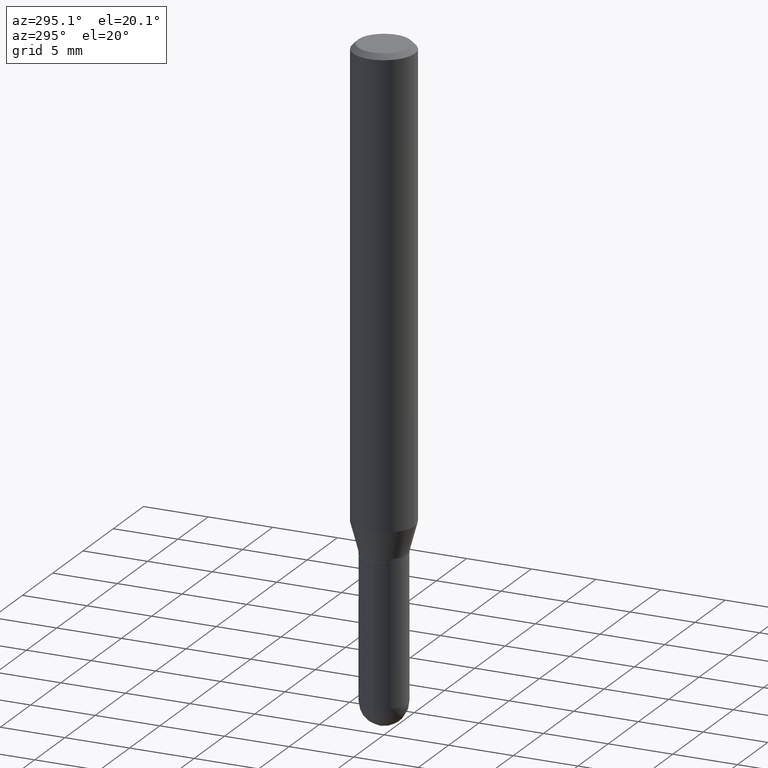
[diagram: clean part render]
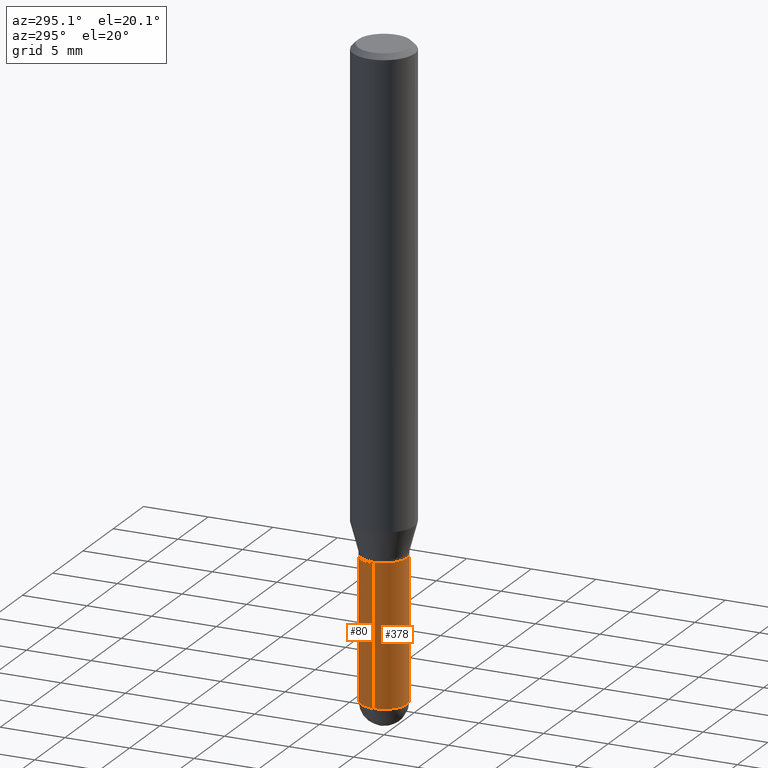
[diagram: same view with one multi-face feature highlighted, each face labeled with its STEP entity id]
A machine part, auxiliary view. The highlighted faces form ONE feature: a constant-radius fillet chain: 2 tangent blend faces with common blend radius 1.7856 mm. The faces share edges in the B-rep.
Their STEP definitions:
[1] entity #80 (Cylinder):
#3 = EDGE_CURVE ( 'NONE', #335, #280, #490, .T. ) ;
#9 = ORIENTED_EDGE ( 'NONE', *, *, #3, .T. ) ;
#14 = CYLINDRICAL_SURFACE ( 'NONE', #477, 0.07030000000000004301 ) ;
#24 = CARTESIAN_POINT ( 'NONE',  ( 0.07030000000000005689, -5.728124284506063124E-15, -1.499999999999999778 ) ) ;
#27 = CARTESIAN_POINT ( 'NONE',  ( -0.07030000000000007077, -5.487855230675816416E-15, -1.499999999999999778 ) ) ;
#41 = CARTESIAN_POINT ( 'NONE',  ( 0.07030000000000004301, -4.909022762413449473E-16, 3.427952273384545239E-30 ) ) ;
#43 = VERTEX_POINT ( 'NONE', #449 ) ;
#56 = DIRECTION ( 'NONE',  ( -2.445468806185136597E-29, 3.491481338843145583E-15, 1.000000000000000000 ) ) ;
#63 = CARTESIAN_POINT ( 'NONE',  ( 4.719021155295457704E-29, -6.737511539565617508E-15, -1.929699999999999971 ) ) ;
#80 = ADVANCED_FACE ( 'NONE', ( #336 ), #14, .T. ) ;
#84 = VERTEX_POINT ( 'NONE', #178 ) ;
#91 = CIRCLE ( 'NONE', #493, 0.07030000000000004301 ) ;
#94 = CARTESIAN_POINT ( 'NONE',  ( 3.668203209277704335E-29, -5.237222008264717388E-15, -1.499999999999999778 ) ) ;
#140 = CARTESIAN_POINT ( 'NONE',  ( 4.719021155295457704E-29, -6.737511539565617508E-15, -1.929699999999999971 ) ) ;
#142 = CARTESIAN_POINT ( 'NONE',  ( -0.07030000000000004301, 4.995115432393507363E-16, -3.458011368449201672E-30 ) ) ;
#148 = DIRECTION ( 'NONE',  ( 1.000000000000000000, -6.982962677686268288E-15, 4.876176775795936353E-29 ) ) ;
#150 = VECTOR ( 'NONE', #303, 39.37007874015748143 ) ;
#178 = CARTESIAN_POINT ( 'NONE',  ( 0.07030000000000004301, -6.478269050156512001E-15, -1.929699999999999971 ) ) ;
#189 = AXIS2_PLACEMENT_3D ( 'NONE', #140, #306, #417 ) ;
#192 = DIRECTION ( 'NONE',  ( -2.445468806185136597E-29, 3.491481338843145583E-15, 1.000000000000000000 ) ) ;
#211 = DIRECTION ( 'NONE',  ( -2.445468806185136877E-29, 3.491481338843145188E-15, 1.000000000000000000 ) ) ;
#244 = DIRECTION ( 'NONE',  ( -2.445468806185136597E-29, 3.491481338843145583E-15, 1.000000000000000000 ) ) ;
#256 = CIRCLE ( 'NONE', #189, 0.07030000000000004301 ) ;
#259 = CARTESIAN_POINT ( 'NONE',  ( 0.000000000000000000, 0.000000000000000000, 0.000000000000000000 ) ) ;
#280 = VERTEX_POINT ( 'NONE', #27 ) ;
#299 = LINE ( 'NONE', #41, #483 ) ;
#302 = AXIS2_PLACEMENT_3D ( 'NONE', #94, #244, #338 ) ;
#303 = DIRECTION ( 'NONE',  ( -2.445468806185136877E-29, 3.491481338843145188E-15, 1.000000000000000000 ) ) ;
#306 = DIRECTION ( 'NONE',  ( -2.445468806185136597E-29, 3.491481338843145583E-15, 1.000000000000000000 ) ) ;
#329 = EDGE_CURVE ( 'NONE', #468, #280, #409, .T. ) ;
#333 = ORIENTED_EDGE ( 'NONE', *, *, #340, .F. ) ;
#335 = VERTEX_POINT ( 'NONE', #485 ) ;
#336 = FACE_OUTER_BOUND ( 'NONE', #366, .T. ) ;
#338 = DIRECTION ( 'NONE',  ( 1.000000000000000000, -6.982962677686273810E-15, 0.000000000000000000 ) ) ;
#340 = EDGE_CURVE ( 'NONE', #84, #468, #299, .T. ) ;
#362 = ORIENTED_EDGE ( 'NONE', *, *, #376, .T. ) ;
#366 = EDGE_LOOP ( 'NONE', ( #414, #9, #407, #333, #362 ) ) ;
#376 = EDGE_CURVE ( 'NONE', #84, #43, #256, .T. ) ;
#405 = DIRECTION ( 'NONE',  ( 1.000000000000000000, -6.982962677686261189E-15, 0.000000000000000000 ) ) ;
#407 = ORIENTED_EDGE ( 'NONE', *, *, #329, .F. ) ;
#409 = CIRCLE ( 'NONE', #302, 0.07030000000000005689 ) ;
#414 = ORIENTED_EDGE ( 'NONE', *, *, #425, .T. ) ;
#417 = DIRECTION ( 'NONE',  ( 1.000000000000000000, -6.982962677686261189E-15, 0.000000000000000000 ) ) ;
#425 = EDGE_CURVE ( 'NONE', #43, #335, #91, .T. ) ;
#449 = CARTESIAN_POINT ( 'NONE',  ( 4.909022762413921804E-16, 0.07029999999999332616, -1.929700000000000193 ) ) ;
#468 = VERTEX_POINT ( 'NONE', #24 ) ;
#477 = AXIS2_PLACEMENT_3D ( 'NONE', #259, #56, #148 ) ;
#483 = VECTOR ( 'NONE', #211, 39.37007874015748143 ) ;
#485 = CARTESIAN_POINT ( 'NONE',  ( -0.07030000000000004301, -5.487855230675816416E-15, -1.929699999999999971 ) ) ;
#490 = LINE ( 'NONE', #142, #150 ) ;
#493 = AXIS2_PLACEMENT_3D ( 'NONE', #63, #192, #405 ) ;
[2] entity #378 (Cylinder):
#3 = EDGE_CURVE ( 'NONE', #335, #280, #490, .T. ) ;
#15 = ORIENTED_EDGE ( 'NONE', *, *, #340, .T. ) ;
#20 = DIRECTION ( 'NONE',  ( -2.445468806185136597E-29, 3.491481338843145583E-15, 1.000000000000000000 ) ) ;
#24 = CARTESIAN_POINT ( 'NONE',  ( 0.07030000000000005689, -5.728124284506063124E-15, -1.499999999999999778 ) ) ;
#27 = CARTESIAN_POINT ( 'NONE',  ( -0.07030000000000007077, -5.487855230675816416E-15, -1.499999999999999778 ) ) ;
#32 = EDGE_CURVE ( 'NONE', #335, #149, #497, .T. ) ;
#41 = CARTESIAN_POINT ( 'NONE',  ( 0.07030000000000004301, -4.909022762413449473E-16, 3.427952273384545239E-30 ) ) ;
#44 = AXIS2_PLACEMENT_3D ( 'NONE', #58, #20, #188 ) ;
#49 = DIRECTION ( 'NONE',  ( 1.000000000000000000, -6.982962677686261189E-15, 0.000000000000000000 ) ) ;
#58 = CARTESIAN_POINT ( 'NONE',  ( 0.000000000000000000, 0.000000000000000000, 0.000000000000000000 ) ) ;
#66 = AXIS2_PLACEMENT_3D ( 'NONE', #489, #368, #49 ) ;
#84 = VERTEX_POINT ( 'NONE', #178 ) ;
#86 = EDGE_LOOP ( 'NONE', ( #475, #330, #373, #15, #339 ) ) ;
#87 = DIRECTION ( 'NONE',  ( -2.445468806185136597E-29, 3.491481338843145583E-15, 1.000000000000000000 ) ) ;
#110 = CIRCLE ( 'NONE', #392, 0.07030000000000005689 ) ;
#131 = CARTESIAN_POINT ( 'NONE',  ( -4.995115432393033060E-16, -0.07030000000000674598, -1.929699999999999527 ) ) ;
#142 = CARTESIAN_POINT ( 'NONE',  ( -0.07030000000000004301, 4.995115432393507363E-16, -3.458011368449201672E-30 ) ) ;
#149 = VERTEX_POINT ( 'NONE', #131 ) ;
#150 = VECTOR ( 'NONE', #303, 39.37007874015748143 ) ;
#151 = AXIS2_PLACEMENT_3D ( 'NONE', #364, #87, #167 ) ;
#167 = DIRECTION ( 'NONE',  ( 1.000000000000000000, -6.982962677686261189E-15, 0.000000000000000000 ) ) ;
#178 = CARTESIAN_POINT ( 'NONE',  ( 0.07030000000000004301, -6.478269050156512001E-15, -1.929699999999999971 ) ) ;
#179 = DIRECTION ( 'NONE',  ( -2.445468806185136597E-29, 3.491481338843145583E-15, 1.000000000000000000 ) ) ;
#188 = DIRECTION ( 'NONE',  ( 1.000000000000000000, -6.982962677686268288E-15, 4.876176775795936353E-29 ) ) ;
#195 = CIRCLE ( 'NONE', #151, 0.07030000000000004301 ) ;
#211 = DIRECTION ( 'NONE',  ( -2.445468806185136877E-29, 3.491481338843145188E-15, 1.000000000000000000 ) ) ;
#220 = EDGE_CURVE ( 'NONE', #280, #468, #110, .T. ) ;
#222 = DIRECTION ( 'NONE',  ( 1.000000000000000000, -6.982962677686273810E-15, 0.000000000000000000 ) ) ;
#280 = VERTEX_POINT ( 'NONE', #27 ) ;
#299 = LINE ( 'NONE', #41, #483 ) ;
#303 = DIRECTION ( 'NONE',  ( -2.445468806185136877E-29, 3.491481338843145188E-15, 1.000000000000000000 ) ) ;
#330 = ORIENTED_EDGE ( 'NONE', *, *, #32, .T. ) ;
#335 = VERTEX_POINT ( 'NONE', #485 ) ;
#339 = ORIENTED_EDGE ( 'NONE', *, *, #220, .F. ) ;
#340 = EDGE_CURVE ( 'NONE', #84, #468, #299, .T. ) ;
#352 = EDGE_CURVE ( 'NONE', #149, #84, #195, .T. ) ;
#364 = CARTESIAN_POINT ( 'NONE',  ( 4.719021155295457704E-29, -6.737511539565617508E-15, -1.929699999999999971 ) ) ;
#368 = DIRECTION ( 'NONE',  ( -2.445468806185136597E-29, 3.491481338843145583E-15, 1.000000000000000000 ) ) ;
#372 = CARTESIAN_POINT ( 'NONE',  ( 3.668203209277704335E-29, -5.237222008264717388E-15, -1.499999999999999778 ) ) ;
#373 = ORIENTED_EDGE ( 'NONE', *, *, #352, .T. ) ;
#378 = ADVANCED_FACE ( 'NONE', ( #454 ), #413, .T. ) ;
#392 = AXIS2_PLACEMENT_3D ( 'NONE', #372, #179, #222 ) ;
#413 = CYLINDRICAL_SURFACE ( 'NONE', #44, 0.07030000000000004301 ) ;
#454 = FACE_OUTER_BOUND ( 'NONE', #86, .T. ) ;
#468 = VERTEX_POINT ( 'NONE', #24 ) ;
#475 = ORIENTED_EDGE ( 'NONE', *, *, #3, .F. ) ;
#483 = VECTOR ( 'NONE', #211, 39.37007874015748143 ) ;
#485 = CARTESIAN_POINT ( 'NONE',  ( -0.07030000000000004301, -5.487855230675816416E-15, -1.929699999999999971 ) ) ;
#489 = CARTESIAN_POINT ( 'NONE',  ( 4.719021155295457704E-29, -6.737511539565617508E-15, -1.929699999999999971 ) ) ;
#490 = LINE ( 'NONE', #142, #150 ) ;
#497 = CIRCLE ( 'NONE', #66, 0.07030000000000004301 ) ;